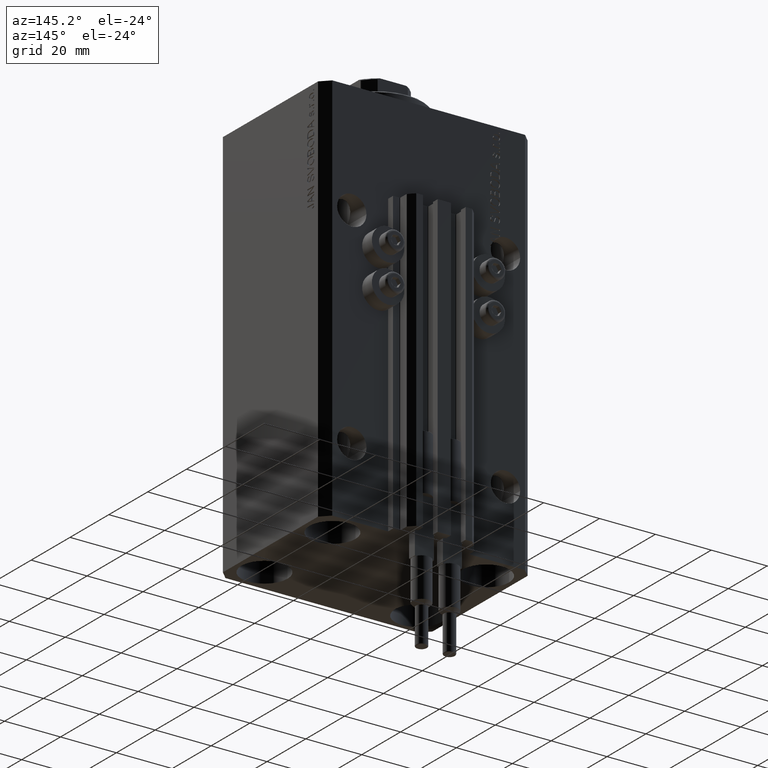
[diagram: clean part render]
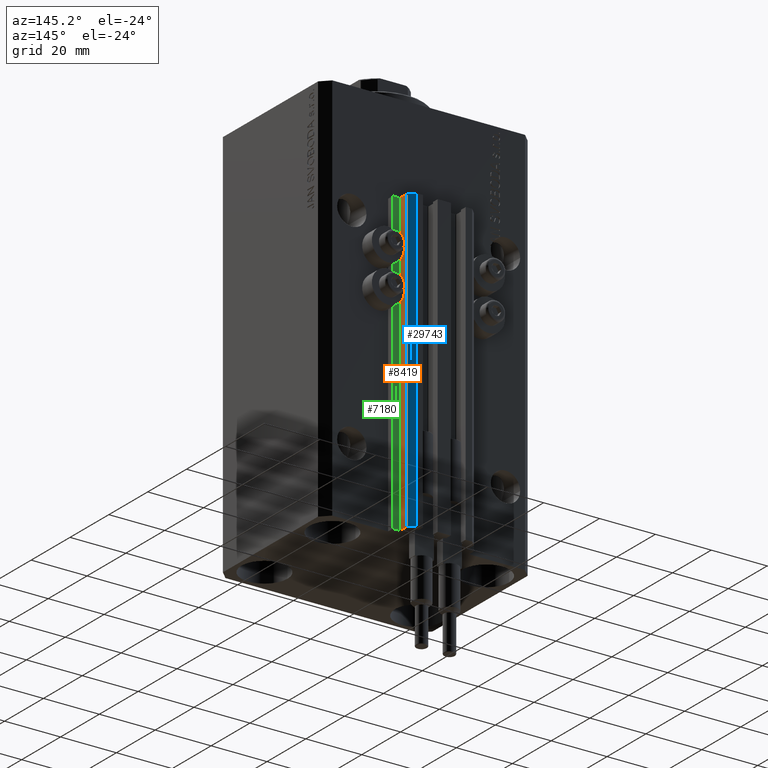
[diagram: same view with three faces highlighted in distinct colors, each labeled with its STEP entity id]
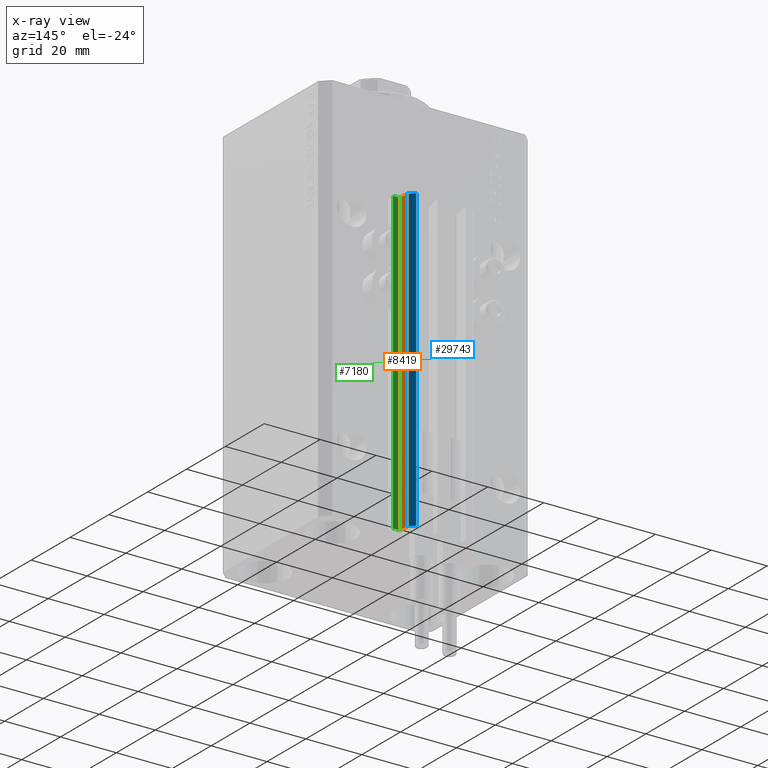
[diagram: x-ray of the same camera — body ghosted, the three highlighted faces saturated]
A machine part, auxiliary view with three faces highlighted in distinct colors.
The next image is the same camera in x-ray (body ghosted, the three faces saturated) — at least one of them is partly hidden behind the body in this view.
Their STEP definitions:

[orange] entity #8419 — the highlighted planar face has unit normal (1, 0, 0).
#2156 = CARTESIAN_POINT ( 'NONE',  ( 12.00000000000000178, 30.20000000000002061, -140.0000000000000000 ) ) ;
#4369 = VERTEX_POINT ( 'NONE', #29513 ) ;
#6048 = EDGE_CURVE ( 'NONE', #41889, #38776, #13247, .T. ) ;
#6632 = CARTESIAN_POINT ( 'NONE',  ( 12.00000000000000000, 33.50000000000001421, -140.0000000000000000 ) ) ;
#7077 = EDGE_LOOP ( 'NONE', ( #10012, #45825, #8900, #30421 ) ) ;
#8356 = LINE ( 'NONE', #28082, #37823 ) ;
#8419 = ADVANCED_FACE ( 'NONE', ( #38707 ), #16285, .T. ) ;
#8900 = ORIENTED_EDGE ( 'NONE', *, *, #23308, .T. ) ;
#10012 = ORIENTED_EDGE ( 'NONE', *, *, #43332, .F. ) ;
#13247 = LINE ( 'NONE', #6632, #33080 ) ;
#13650 = DIRECTION ( 'NONE',  ( 0.000000000000000000, 0.000000000000000000, 1.000000000000000000 ) ) ;
#16285 = PLANE ( 'NONE',  #22148 ) ;
#17532 = LINE ( 'NONE', #44307, #39770 ) ;
#20520 = CARTESIAN_POINT ( 'NONE',  ( 12.00000000000000000, 33.50000000000001421, -33.00000000000000000 ) ) ;
#21281 = CARTESIAN_POINT ( 'NONE',  ( 12.00000000000000178, 30.20000000000002061, -33.00000000000000000 ) ) ;
#22148 = AXIS2_PLACEMENT_3D ( 'NONE', #2156, #35283, #23358 ) ;
#23308 = EDGE_CURVE ( 'NONE', #4369, #41889, #8356, .T. ) ;
#23358 = DIRECTION ( 'NONE',  ( -5.256737805990334897E-16, 1.000000000000000000, 0.000000000000000000 ) ) ;
#23493 = VERTEX_POINT ( 'NONE', #24666 ) ;
#24666 = CARTESIAN_POINT ( 'NONE',  ( 12.00000000000000178, 30.20000000000002061, -33.00000000000000000 ) ) ;
#28082 = CARTESIAN_POINT ( 'NONE',  ( 12.00000000000000178, 30.20000000000002061, -140.0000000000000000 ) ) ;
#28359 = DIRECTION ( 'NONE',  ( -5.256737805990334897E-16, 1.000000000000000000, 0.000000000000000000 ) ) ;
#29513 = CARTESIAN_POINT ( 'NONE',  ( 12.00000000000000178, 30.20000000000002061, -140.0000000000000000 ) ) ;
#30421 = ORIENTED_EDGE ( 'NONE', *, *, #6048, .T. ) ;
#31265 = DIRECTION ( 'NONE',  ( -5.256737805990334897E-16, 1.000000000000000000, 0.000000000000000000 ) ) ;
#32028 = LINE ( 'NONE', #21281, #34633 ) ;
#32482 = DIRECTION ( 'NONE',  ( 0.000000000000000000, 0.000000000000000000, 1.000000000000000000 ) ) ;
#33080 = VECTOR ( 'NONE', #32482, 1000.000000000000000 ) ;
#34633 = VECTOR ( 'NONE', #28359, 1000.000000000000000 ) ;
#35283 = DIRECTION ( 'NONE',  ( 1.000000000000000000, 5.256737805990334897E-16, -0.000000000000000000 ) ) ;
#37823 = VECTOR ( 'NONE', #31265, 1000.000000000000000 ) ;
#38707 = FACE_OUTER_BOUND ( 'NONE', #7077, .T. ) ;
#38776 = VERTEX_POINT ( 'NONE', #20520 ) ;
#39193 = EDGE_CURVE ( 'NONE', #4369, #23493, #17532, .T. ) ;
#39770 = VECTOR ( 'NONE', #13650, 1000.000000000000000 ) ;
#41114 = CARTESIAN_POINT ( 'NONE',  ( 12.00000000000000000, 33.50000000000001421, -140.0000000000000000 ) ) ;
#41889 = VERTEX_POINT ( 'NONE', #41114 ) ;
#43332 = EDGE_CURVE ( 'NONE', #23493, #38776, #32028, .T. ) ;
#44307 = CARTESIAN_POINT ( 'NONE',  ( 12.00000000000000178, 30.20000000000002061, -140.0000000000000000 ) ) ;
#45825 = ORIENTED_EDGE ( 'NONE', *, *, #39193, .F. ) ;

[blue] entity #29743 — the highlighted planar face has unit normal (0.7071, 0.7071, 0).
#1449 = LINE ( 'NONE', #9247, #40977 ) ;
#4955 = DIRECTION ( 'NONE',  ( -0.7071067811865474617, 0.7071067811865474617, 0.000000000000000000 ) ) ;
#5100 = EDGE_CURVE ( 'NONE', #35818, #11318, #10829, .T. ) ;
#6048 = EDGE_CURVE ( 'NONE', #41889, #38776, #13247, .T. ) ;
#6146 = AXIS2_PLACEMENT_3D ( 'NONE', #41495, #9101, #4955 ) ;
#6632 = CARTESIAN_POINT ( 'NONE',  ( 12.00000000000000000, 33.50000000000001421, -140.0000000000000000 ) ) ;
#9101 = DIRECTION ( 'NONE',  ( 0.7071067811865475727, 0.7071067811865475727, -0.000000000000000000 ) ) ;
#9247 = CARTESIAN_POINT ( 'NONE',  ( 12.00000000000000000, 33.50000000000001421, -33.00000000000000000 ) ) ;
#10829 = LINE ( 'NONE', #37139, #33051 ) ;
#11304 = DIRECTION ( 'NONE',  ( 0.000000000000000000, 0.000000000000000000, 1.000000000000000000 ) ) ;
#11318 = VERTEX_POINT ( 'NONE', #40271 ) ;
#11419 = EDGE_LOOP ( 'NONE', ( #29779, #18805, #20382, #20255 ) ) ;
#12419 = DIRECTION ( 'NONE',  ( -0.7071067811865474617, 0.7071067811865474617, 0.000000000000000000 ) ) ;
#13185 = EDGE_CURVE ( 'NONE', #38776, #11318, #1449, .T. ) ;
#13247 = LINE ( 'NONE', #6632, #33080 ) ;
#15432 = CARTESIAN_POINT ( 'NONE',  ( 12.00000000000000000, 33.50000000000001421, -140.0000000000000000 ) ) ;
#16537 = EDGE_CURVE ( 'NONE', #41889, #35818, #30541, .T. ) ;
#18805 = ORIENTED_EDGE ( 'NONE', *, *, #6048, .F. ) ;
#20255 = ORIENTED_EDGE ( 'NONE', *, *, #5100, .T. ) ;
#20382 = ORIENTED_EDGE ( 'NONE', *, *, #16537, .T. ) ;
#20520 = CARTESIAN_POINT ( 'NONE',  ( 12.00000000000000000, 33.50000000000001421, -33.00000000000000000 ) ) ;
#26642 = PLANE ( 'NONE',  #6146 ) ;
#29743 = ADVANCED_FACE ( 'NONE', ( #33959 ), #26642, .T. ) ;
#29779 = ORIENTED_EDGE ( 'NONE', *, *, #13185, .F. ) ;
#30541 = LINE ( 'NONE', #15432, #39257 ) ;
#32482 = DIRECTION ( 'NONE',  ( 0.000000000000000000, 0.000000000000000000, 1.000000000000000000 ) ) ;
#33051 = VECTOR ( 'NONE', #11304, 1000.000000000000000 ) ;
#33080 = VECTOR ( 'NONE', #32482, 1000.000000000000000 ) ;
#33483 = DIRECTION ( 'NONE',  ( -0.7071067811865474617, 0.7071067811865474617, 0.000000000000000000 ) ) ;
#33959 = FACE_OUTER_BOUND ( 'NONE', #11419, .T. ) ;
#34684 = CARTESIAN_POINT ( 'NONE',  ( 9.999999999999998224, 35.50000000000001421, -140.0000000000000000 ) ) ;
#35818 = VERTEX_POINT ( 'NONE', #34684 ) ;
#37139 = CARTESIAN_POINT ( 'NONE',  ( 9.999999999999998224, 35.50000000000001421, -140.0000000000000000 ) ) ;
#38776 = VERTEX_POINT ( 'NONE', #20520 ) ;
#39257 = VECTOR ( 'NONE', #33483, 1000.000000000000114 ) ;
#40271 = CARTESIAN_POINT ( 'NONE',  ( 9.999999999999998224, 35.50000000000001421, -33.00000000000000000 ) ) ;
#40977 = VECTOR ( 'NONE', #12419, 1000.000000000000114 ) ;
#41114 = CARTESIAN_POINT ( 'NONE',  ( 12.00000000000000000, 33.50000000000001421, -140.0000000000000000 ) ) ;
#41495 = CARTESIAN_POINT ( 'NONE',  ( 12.00000000000000000, 33.50000000000001421, -140.0000000000000000 ) ) ;
#41889 = VERTEX_POINT ( 'NONE', #41114 ) ;

[green] entity #7180 — the highlighted planar face has unit normal (0, 1, 0).
#118 = CARTESIAN_POINT ( 'NONE',  ( 12.20000000000000107, 30.00000000000002487, -140.0000000000000000 ) ) ;
#456 = AXIS2_PLACEMENT_3D ( 'NONE', #33492, #3765, #18617 ) ;
#1497 = LINE ( 'NONE', #16105, #44068 ) ;
#3765 = DIRECTION ( 'NONE',  ( 0.000000000000000000, 1.000000000000000000, -0.000000000000000000 ) ) ;
#4730 = DIRECTION ( 'NONE',  ( 0.000000000000000000, 0.000000000000000000, 1.000000000000000000 ) ) ;
#7180 = ADVANCED_FACE ( 'NONE', ( #23472 ), #22991, .T. ) ;
#7521 = EDGE_CURVE ( 'NONE', #39179, #24019, #36719, .T. ) ;
#9294 = LINE ( 'NONE', #39011, #18281 ) ;
#9957 = EDGE_CURVE ( 'NONE', #24019, #25915, #44444, .T. ) ;
#16105 = CARTESIAN_POINT ( 'NONE',  ( 14.49999999999999645, 30.00000000000002487, -140.0000000000000000 ) ) ;
#18281 = VECTOR ( 'NONE', #34871, 1000.000000000000000 ) ;
#18617 = DIRECTION ( 'NONE',  ( 0.000000000000000000, 0.000000000000000000, 1.000000000000000000 ) ) ;
#18674 = CARTESIAN_POINT ( 'NONE',  ( 14.49999999999999645, 30.00000000000002487, -140.0000000000000000 ) ) ;
#19128 = VECTOR ( 'NONE', #33063, 1000.000000000000000 ) ;
#22991 = PLANE ( 'NONE',  #456 ) ;
#23472 = FACE_OUTER_BOUND ( 'NONE', #32152, .T. ) ;
#24019 = VERTEX_POINT ( 'NONE', #48168 ) ;
#24857 = EDGE_CURVE ( 'NONE', #39179, #34888, #1497, .T. ) ;
#25915 = VERTEX_POINT ( 'NONE', #26070 ) ;
#26070 = CARTESIAN_POINT ( 'NONE',  ( 12.20000000000000107, 30.00000000000002487, -33.00000000000000000 ) ) ;
#26640 = CARTESIAN_POINT ( 'NONE',  ( 14.49999999999999645, 30.00000000000002487, -33.00000000000000000 ) ) ;
#30906 = ORIENTED_EDGE ( 'NONE', *, *, #7521, .T. ) ;
#32152 = EDGE_LOOP ( 'NONE', ( #46331, #34193, #30906, #44241 ) ) ;
#32413 = CARTESIAN_POINT ( 'NONE',  ( 14.49999999999999645, 30.00000000000002487, -140.0000000000000000 ) ) ;
#33063 = DIRECTION ( 'NONE',  ( -1.000000000000000000, 0.000000000000000000, 0.000000000000000000 ) ) ;
#33492 = CARTESIAN_POINT ( 'NONE',  ( 14.49999999999999645, 30.00000000000002487, -140.0000000000000000 ) ) ;
#34193 = ORIENTED_EDGE ( 'NONE', *, *, #24857, .F. ) ;
#34871 = DIRECTION ( 'NONE',  ( -1.000000000000000000, 0.000000000000000000, 0.000000000000000000 ) ) ;
#34888 = VERTEX_POINT ( 'NONE', #26640 ) ;
#35406 = VECTOR ( 'NONE', #4730, 1000.000000000000000 ) ;
#36719 = LINE ( 'NONE', #18674, #19128 ) ;
#39011 = CARTESIAN_POINT ( 'NONE',  ( 14.49999999999999645, 30.00000000000002487, -33.00000000000000000 ) ) ;
#39179 = VERTEX_POINT ( 'NONE', #32413 ) ;
#43223 = EDGE_CURVE ( 'NONE', #34888, #25915, #9294, .T. ) ;
#44068 = VECTOR ( 'NONE', #45579, 1000.000000000000000 ) ;
#44241 = ORIENTED_EDGE ( 'NONE', *, *, #9957, .T. ) ;
#44444 = LINE ( 'NONE', #118, #35406 ) ;
#45579 = DIRECTION ( 'NONE',  ( 0.000000000000000000, 0.000000000000000000, 1.000000000000000000 ) ) ;
#46331 = ORIENTED_EDGE ( 'NONE', *, *, #43223, .F. ) ;
#48168 = CARTESIAN_POINT ( 'NONE',  ( 12.20000000000000107, 30.00000000000002487, -140.0000000000000000 ) ) ;